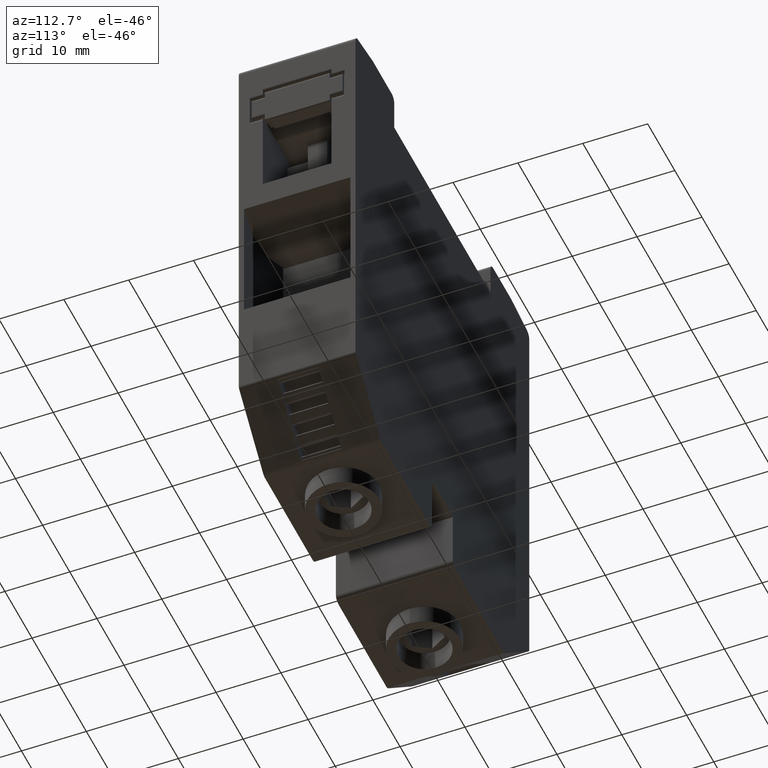
[diagram: clean part render]
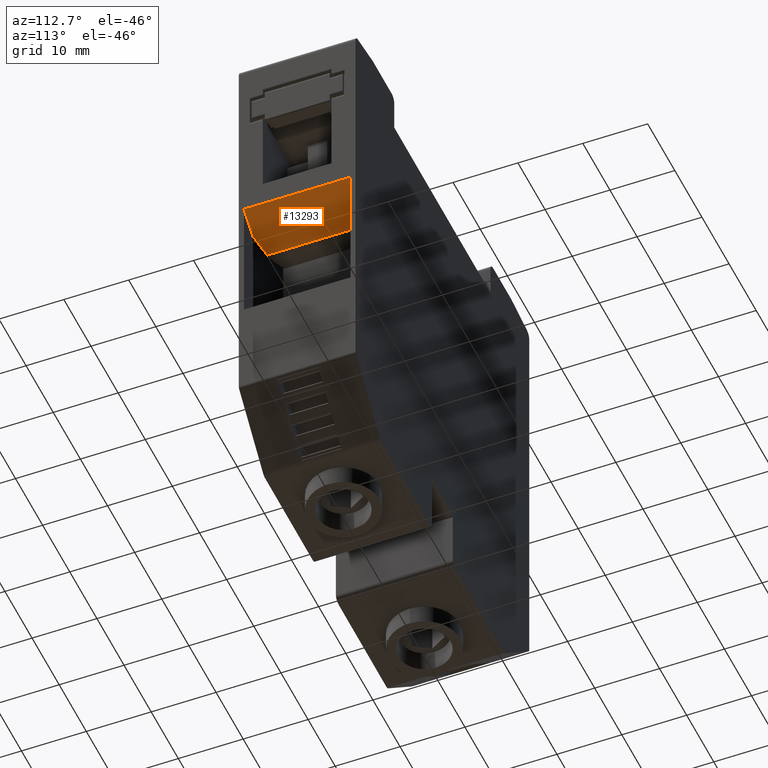
[diagram: same view with one face highlighted and labeled with its STEP entity id]
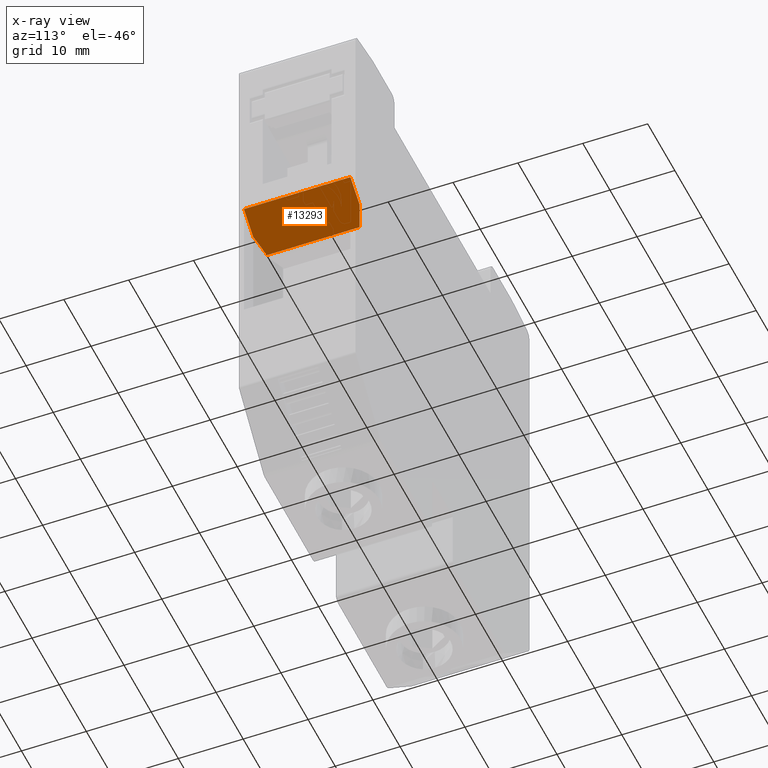
[diagram: x-ray of the same camera — body ghosted, the highlighted face saturated]
A machine part, auxiliary view. The second image highlights one B-rep face of the part: STEP entity #13293.
The next image is the same camera in x-ray: the body ghosted, the highlighted face saturated — about 0% of this face is hidden behind the body in this view.
In plain terms, the highlighted planar face has unit normal (-0.5736, -0, 0.8192).
Its self-contained STEP definition (entity closure, byte-faithful):
#1786 = VECTOR ( 'NONE', #14772, 999.9999999999998900 ) ;
#1798 = VECTOR ( 'NONE', #14567, 1000.000000000000000 ) ;
#1803 = VECTOR ( 'NONE', #14490, 1000.000000000000000 ) ;
#1865 = EDGE_CURVE ( 'NONE', #22014, #22126, #14527, .T. ) ;
#1875 = EDGE_CURVE ( 'NONE', #22126, #22135, #14566, .T. ) ;
#1906 = EDGE_CURVE ( 'NONE', #22135, #22028, #14744, .T. ) ;
#6640 = CARTESIAN_POINT ( 'NONE',  ( 128.5685619472114400, 58.27496569329951400, 43.08538865533778800 ) ) ;
#6655 = CARTESIAN_POINT ( 'NONE',  ( 128.5685619472415600, 41.87496569329982100, 43.08538865544794300 ) ) ;
#6789 = CARTESIAN_POINT ( 'NONE',  ( 126.0641528027202000, 42.95178032692206200, 41.33178249368923200 ) ) ;
#6793 = CARTESIAN_POINT ( 'NONE',  ( 126.0641528027053100, 57.19815105969211500, 41.33178249364612400 ) ) ;
#6887 = CARTESIAN_POINT ( 'NONE',  ( 131.9995145391795600, 58.27496569329918000, 45.48776752356929600 ) ) ;
#6892 = CARTESIAN_POINT ( 'NONE',  ( 131.9995145391753500, 41.87496569330105700, 45.48776752356495500 ) ) ;
#8125 = PLANE ( 'NONE',  #16018 ) ;
#8139 = CARTESIAN_POINT ( 'NONE',  ( 125.5475975078062000, 25.79742200577145900, 40.97008658228615000 ) ) ;
#8142 = FACE_OUTER_BOUND ( 'NONE', #21402, .T. ) ;
#8169 = DIRECTION ( 'NONE',  ( -0.5735764363518298700, -6.805365864156898300E-014, 0.8191520442884430200 ) ) ;
#8170 = DIRECTION ( 'NONE',  ( 0.8191520442884430200, 0.0000000000000000000, 0.5735764363518298700 ) ) ;
#8260 = LINE ( 'NONE', #8300, #15855 ) ;
#8280 = DIRECTION ( 'NONE',  ( 0.8191520442884430200, 0.0000000000000000000, 0.5735764363518298700 ) ) ;
#8300 = CARTESIAN_POINT ( 'NONE',  ( 125.5475975078055600, 41.87496569330078700, 40.97008658228704500 ) ) ;
#8470 = LINE ( 'NONE', #8472, #16013 ) ;
#8472 = CARTESIAN_POINT ( 'NONE',  ( 131.9995145391752100, 58.27496569329918000, 45.48776752356625500 ) ) ;
#8505 = DIRECTION ( 'NONE',  ( -0.8191520442732312900, 1.192813500427187400E-013, -0.5735764363735543800 ) ) ;
#8529 = CARTESIAN_POINT ( 'NONE',  ( 131.9995145391752100, 60.57460764096158800, 45.48776752356495500 ) ) ;
#8539 = DIRECTION ( 'NONE',  ( -6.982966722218760200E-015, 1.000000000000000000, -6.461698349982188700E-027 ) ) ;
#8543 = LINE ( 'NONE', #8529, #16049 ) ;
#13293 = ADVANCED_FACE ( 'NONE', ( #8142 ), #8125, .F. ) ;
#13321 = EDGE_CURVE ( 'NONE', #22028, #22260, #8260, .T. ) ;
#13367 = EDGE_CURVE ( 'NONE', #22252, #22014, #8470, .T. ) ;
#13370 = EDGE_CURVE ( 'NONE', #22260, #22252, #8543, .T. ) ;
#14490 = DIRECTION ( 'NONE',  ( -0.7726298903284655200, -0.3322057716097186500, -0.5410012734552617200 ) ) ;
#14517 = CARTESIAN_POINT ( 'NONE',  ( 128.5685619471695100, 58.27496569329986200, 43.08538865539881600 ) ) ;
#14527 = LINE ( 'NONE', #14517, #1803 ) ;
#14566 = LINE ( 'NONE', #14578, #1798 ) ;
#14567 = DIRECTION ( 'NONE',  ( 3.903397500433504600E-014, -1.000000000000000000, -5.574629359754909800E-014 ) ) ;
#14578 = CARTESIAN_POINT ( 'NONE',  ( 126.0641528026906100, 25.79742200577145900, 41.33178249366710600 ) ) ;
#14744 = LINE ( 'NONE', #14798, #1786 ) ;
#14772 = DIRECTION ( 'NONE',  ( 0.7726298903284453100, -0.3322057716098788500, 0.5410012734551923300 ) ) ;
#14798 = CARTESIAN_POINT ( 'NONE',  ( 126.0641528027504300, 42.95178032690904500, 41.33178249371041300 ) ) ;
#15855 = VECTOR ( 'NONE', #8280, 1000.000000000000000 ) ;
#16013 = VECTOR ( 'NONE', #8505, 1000.000000000000000 ) ;
#16018 = AXIS2_PLACEMENT_3D ( 'NONE', #8139, #8169, #8170 ) ;
#16049 = VECTOR ( 'NONE', #8539, 1000.000000000000000 ) ;
#20474 = ORIENTED_EDGE ( 'NONE', *, *, #1906, .F. ) ;
#20478 = ORIENTED_EDGE ( 'NONE', *, *, #13367, .F. ) ;
#20483 = ORIENTED_EDGE ( 'NONE', *, *, #1865, .F. ) ;
#20491 = ORIENTED_EDGE ( 'NONE', *, *, #13321, .F. ) ;
#20506 = ORIENTED_EDGE ( 'NONE', *, *, #13370, .F. ) ;
#20513 = ORIENTED_EDGE ( 'NONE', *, *, #1875, .F. ) ;
#21402 = EDGE_LOOP ( 'NONE', ( #20506, #20491, #20474, #20513, #20483, #20478 ) ) ;
#22014 = VERTEX_POINT ( 'NONE', #6640 ) ;
#22028 = VERTEX_POINT ( 'NONE', #6655 ) ;
#22126 = VERTEX_POINT ( 'NONE', #6793 ) ;
#22135 = VERTEX_POINT ( 'NONE', #6789 ) ;
#22252 = VERTEX_POINT ( 'NONE', #6887 ) ;
#22260 = VERTEX_POINT ( 'NONE', #6892 ) ;